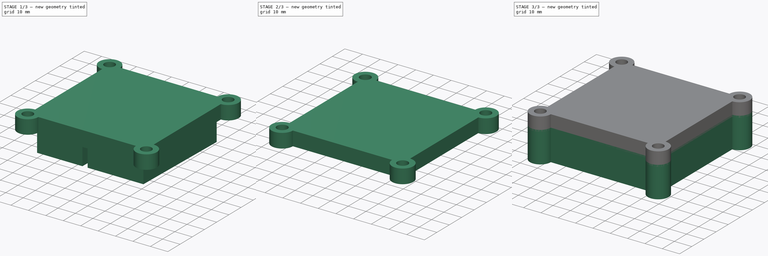
[diagram: build sequence overview — one tinted view per stage of 3, left to right]
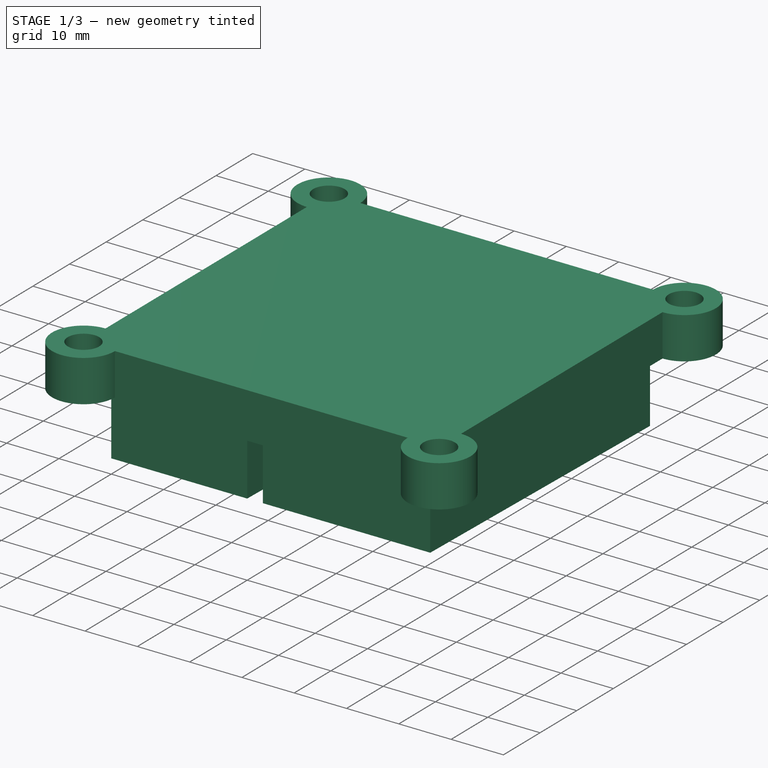
[diagram: stage 1 of 3 — iso view after this stage's code; geometry added in this stage tinted green]
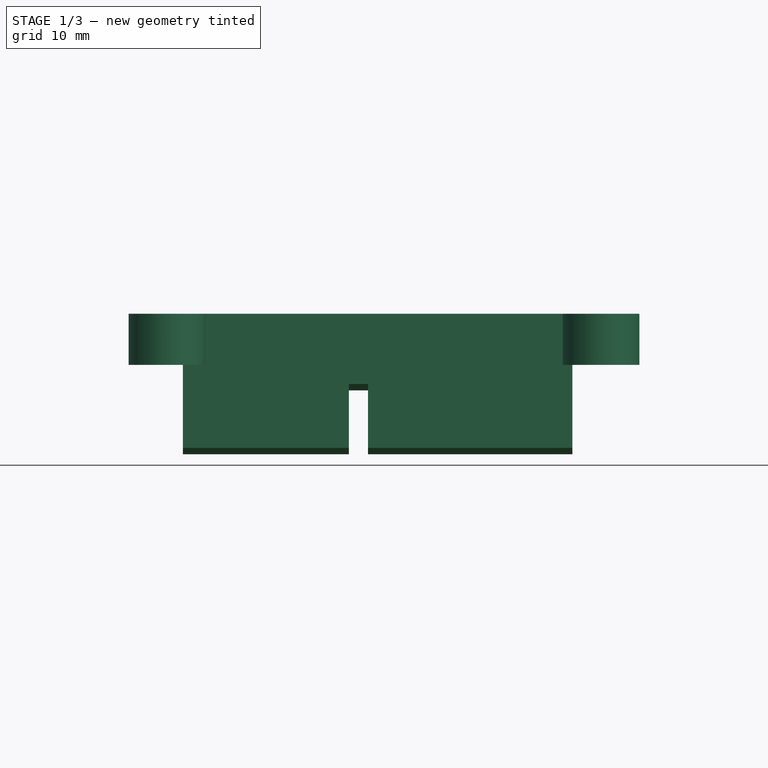
[diagram: stage 1 of 3 — front view after this stage's code; geometry added in this stage tinted green]
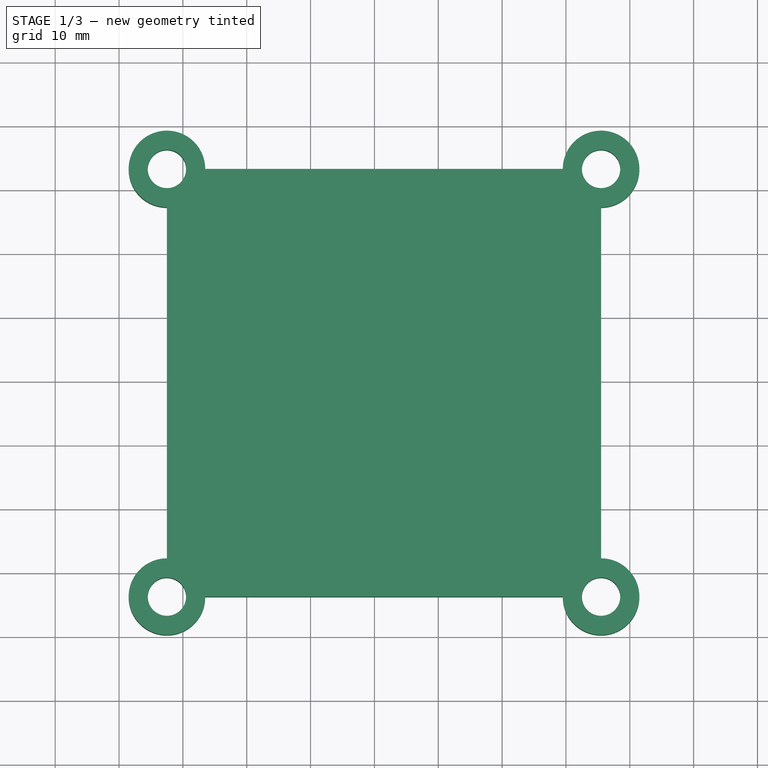
[diagram: stage 1 of 3 — top view after this stage's code; geometry added in this stage tinted green]
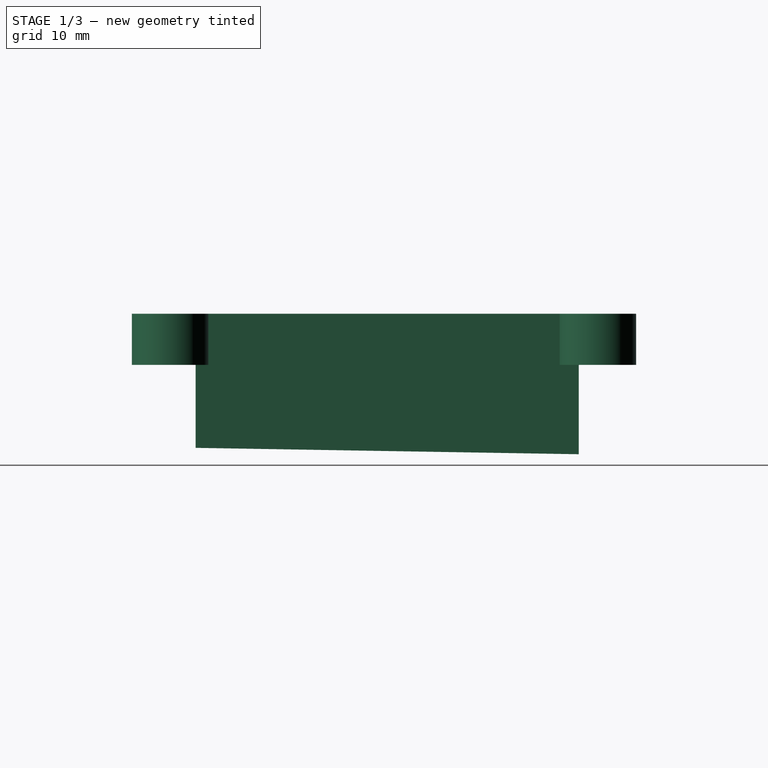
[diagram: stage 1 of 3 — right view after this stage's code; geometry added in this stage tinted green]
FCSTD DOCUMENT  (FreeCAD 0.16R6704 (Git))
Label: HalMultiSensorEnclosure
License: All rights reserved
LicenseURL: http://en.wikipedia.org/wiki/All_rights_reserved
objects: Part::Extrusion×3, Sketcher::SketchObject×2, Part::Cut×2
note: 7 computed .brp shape members not serialized (recipe doc carries the construction recipe); baked Part::Feature solids carry a one-line shape summary decoded from their .brp

FEATURE [Sketcher::SketchObject] Sketch  label="Enclosure"
  sketch-geometry (12):
    g0: Circle CenterX=-2.5 CenterY=-64 CenterZ=0 NormalX=0 NormalY=0 NormalZ=1 Radius=3
    g1: Circle CenterX=-2.5 CenterY=3 CenterZ=0 NormalX=0 NormalY=0 NormalZ=1 Radius=3
    g2: Circle CenterX=65.5 CenterY=-64 CenterZ=0 NormalX=0 NormalY=0 NormalZ=1 Radius=3
    g3: ArcOfCircle CenterX=65.5 CenterY=-64 CenterZ=0 NormalX=0 NormalY=0 NormalZ=1 Radius=6 StartAngle=3.14159 EndAngle=7.85398
    g4: ArcOfCircle CenterX=-2.5 CenterY=-64 CenterZ=0 NormalX=0 NormalY=0 NormalZ=1 Radius=6 StartAngle=1.5708 EndAngle=6.28319
    g5: ArcOfCircle CenterX=-2.5 CenterY=3 CenterZ=0 NormalX=0 NormalY=0 NormalZ=1 Radius=6 StartAngle=5.8686e-08 EndAngle=4.71238
    g6: ArcOfCircle CenterX=65.5 CenterY=3 CenterZ=0 NormalX=0 NormalY=0 NormalZ=1 Radius=6 StartAngle=4.71239 EndAngle=9.42478
    g7: Circle CenterX=65.5 CenterY=3 CenterZ=0 NormalX=0 NormalY=0 NormalZ=1 Radius=3
    g8: LineSegment StartX=3.5 StartY=-64 StartZ=0 EndX=59.5 EndY=-64 EndZ=0
    g9: LineSegment StartX=65.5 StartY=-58 StartZ=0 EndX=65.5 EndY=-3 EndZ=0
    g10: LineSegment StartX=59.5 StartY=3 StartZ=0 EndX=3.5 EndY=3 EndZ=0
    g11: LineSegment StartX=-2.50003 StartY=-3 StartZ=0 EndX=-2.5 EndY=-58 EndZ=0
  constraints (36):
    c: Radius(g1) = 3
    c: Radius(g5) = 6
    c: Equal(g5,g6)
    c: Equal(g6,g3)
    c: Equal(g3,g4)
    c: Equal(g1,g7)
    c: Equal(g7,g2)
    c: Equal(g2,g0)
    c: Coincident(g5,g10)
    c: Coincident(g5,g11)
    c: Coincident(g4,g11)
    c: Coincident(g4,g8)
    c: Coincident(g6,g10)
    c: Coincident(g6,g9)
    c: Coincident(g3,g9)
    c: Coincident(g3,g8)
    c: Coincident(g1,g5)
    c: Coincident(g6,g7)
    c: Coincident(g2,g3)
    c: Coincident(g0,g4)
    c: DistanceY(g5,g1) = 6
    c: DistanceX(g1,g5) = 6
    c: DistanceX(g6,g6) = 6
    c: DistanceY(g6,g6) = 6
    c: DistanceY(g2,g3) = 6
    c: DistanceX(g3,g2) = 6
    c: DistanceX(g0,g4) = 6
    c: DistanceY(g0,g4) = 6
    c: Equal(g10,g8)
    c: Equal(g11,g9)
    c: DistanceX(g10,g10) = 56
    c: DistanceY(g9,g9) = 55
    c: Horizontal(g10)
    c: Vertical(g9)
    c: DistanceX(g1,g-1) = 2.5
    c: DistanceY(g-1,g1) = 3
FEATURE [Sketcher::SketchObject] Sketch001  label="Compartment"
  Placement = pos=(0,0,0) rot=(1,0,0;1.5708rad)
  sketch-geometry (10):
    g0: LineSegment StartX=0 StartY=3 StartZ=0 EndX=26 EndY=3 EndZ=0
    g1: LineSegment StartX=26 StartY=22 StartZ=0 EndX=0 EndY=22 EndZ=0
    g2: LineSegment StartX=0 StartY=22 StartZ=0 EndX=0 EndY=3 EndZ=0
    g3: LineSegment StartX=61 StartY=3 StartZ=0 EndX=29 EndY=3 EndZ=0
    g4: LineSegment StartX=29 StartY=22 StartZ=0 EndX=61 EndY=22 EndZ=0
    g5: LineSegment StartX=61 StartY=22 StartZ=0 EndX=61 EndY=3 EndZ=0
    g6: LineSegment StartX=26 StartY=22 StartZ=0 EndX=29 EndY=22 EndZ=0
    g7: LineSegment StartX=26 StartY=3 StartZ=0 EndX=26 EndY=13 EndZ=0
    g8: LineSegment StartX=29 StartY=3 StartZ=0 EndX=29 EndY=13 EndZ=0
    g9: LineSegment StartX=29 StartY=13 StartZ=0 EndX=26 EndY=13 EndZ=0
  constraints (31):
    c: Coincident(g1,g2)
    c: Coincident(g2,g0)
    c: Horizontal(g0)
    c: Horizontal(g1)
    c: Vertical(g2)
    c: Coincident(g4,g5)
    c: Coincident(g5,g3)
    c: Horizontal(g3)
    c: Horizontal(g4)
    c: Vertical(g5)
    c: DistanceY(g5,g5) = 19
    c: Equal(g5,g2)
    c: DistanceX(g4,g4) = 32
    c: DistanceX(g1,g1) = 26
    c: DistanceX(g1,g4) = 3
    c: Coincident(g6,g1)
    c: Coincident(g6,g4)
    c: DistanceY(g4,g1) = 0
    c: Coincident(g7,g0)
    c: Vertical(g7)
    c: Coincident(g8,g3)
    c: Vertical(g8)
    c: Coincident(g9,g8)
    c: Coincident(g9,g7)
    c: Equal(g9,g6)
    c: Equal(g7,g8)
    c: DistanceY(g8,g8) = 10
    c: Equal(g4,g3)
    c: Equal(g1,g0)
    c: DistanceY(g-1,g0) = 3
    c: DistanceX(g-1,g0) = 0
FEATURE [Part::Extrusion] Extrude  label="Compartment001"
  Base = -> Sketch001
  Dir = (0,-60,1)
  Solid = true
FEATURE [Part::Extrusion] Extrude002  label="Top"
  Base = -> Sketch
  Dir = (0,0,-8)
  Placement = pos=(0,0,25) rot=(0,0,1;0rad)
  Solid = true
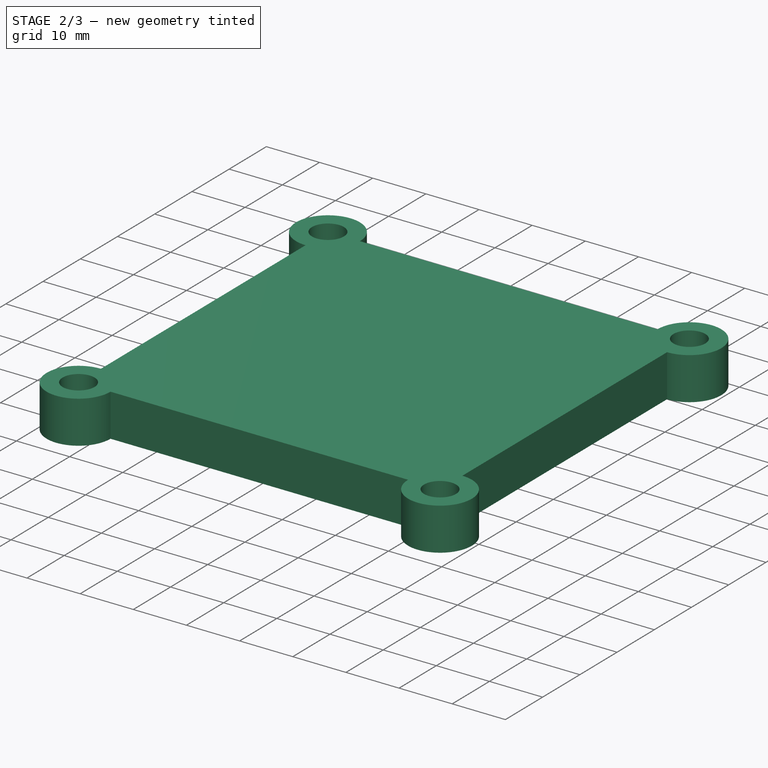
[diagram: stage 2 of 3 — iso view after this stage's code; geometry added in this stage tinted green]
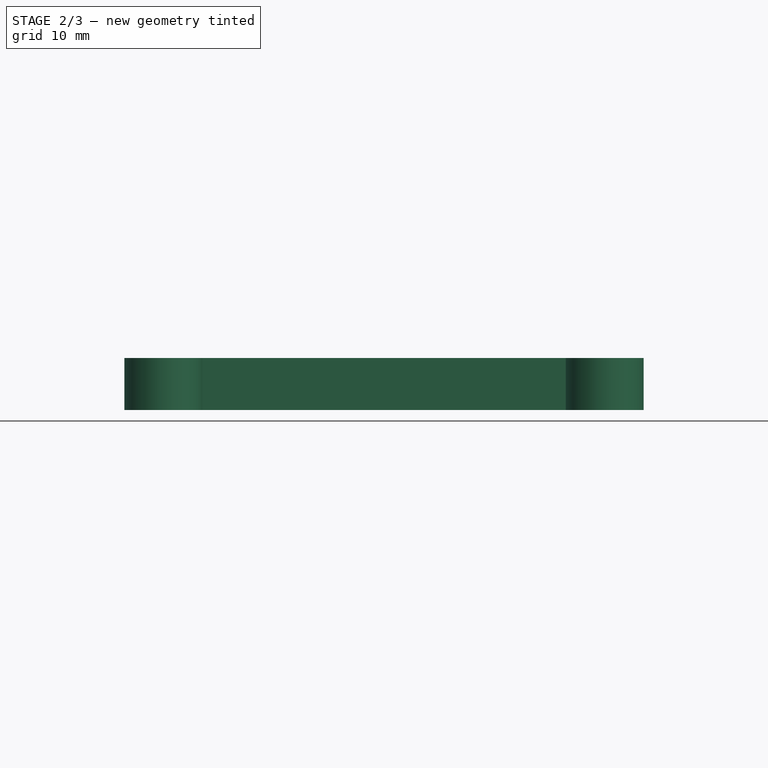
[diagram: stage 2 of 3 — front view after this stage's code; geometry added in this stage tinted green]
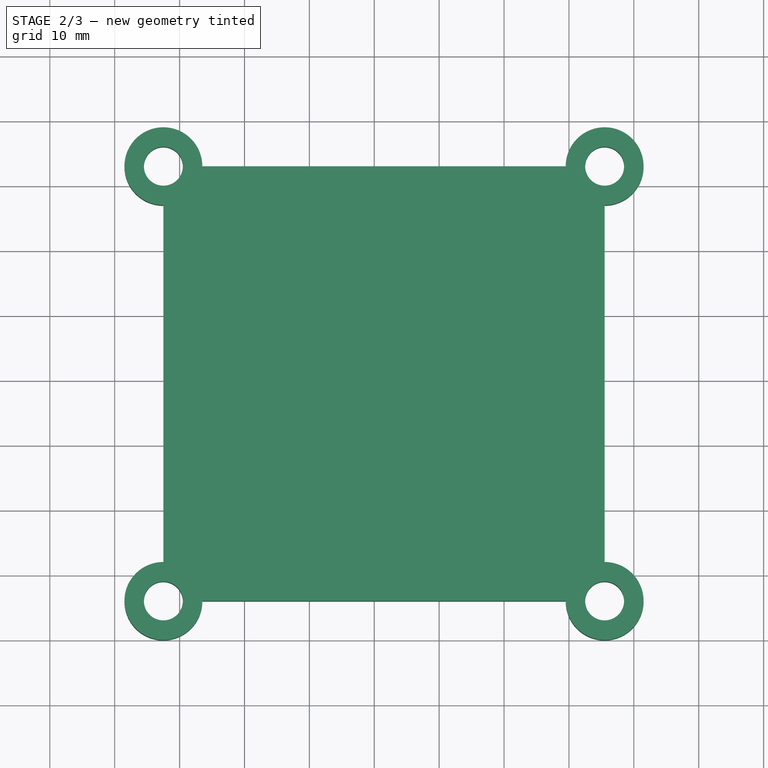
[diagram: stage 2 of 3 — top view after this stage's code; geometry added in this stage tinted green]
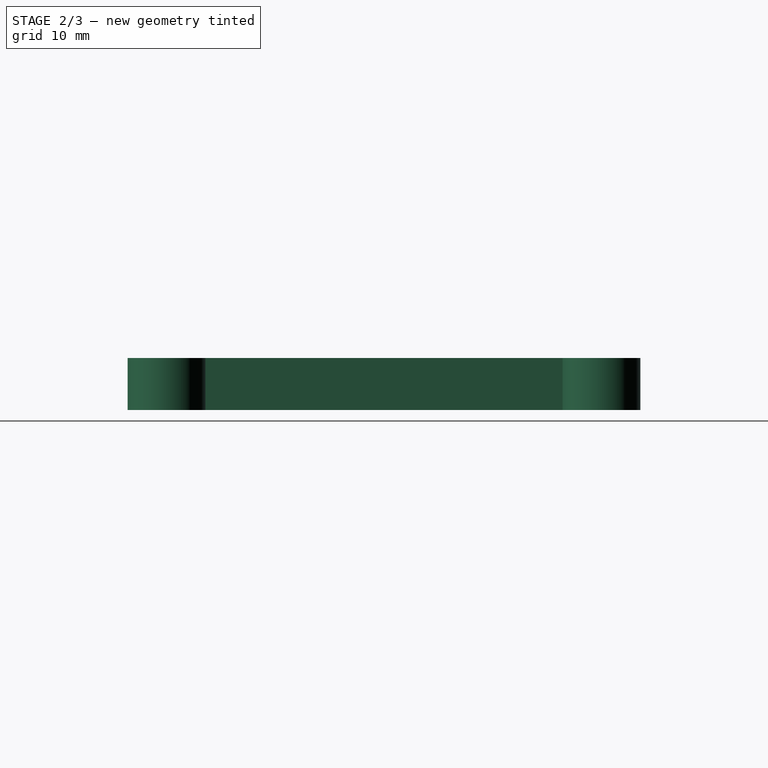
[diagram: stage 2 of 3 — right view after this stage's code; geometry added in this stage tinted green]
FEATURE [Part::Cut] Cut001  label="Top001"
  Base = -> Extrude002
  Tool = -> Extrude
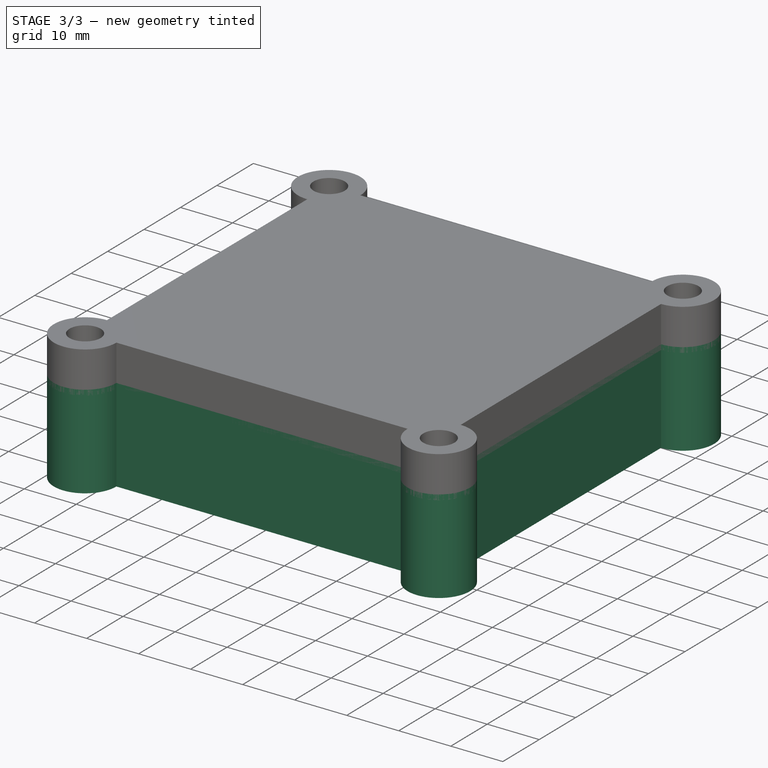
[diagram: stage 3 of 3 — iso view after this stage's code; geometry added in this stage tinted green]
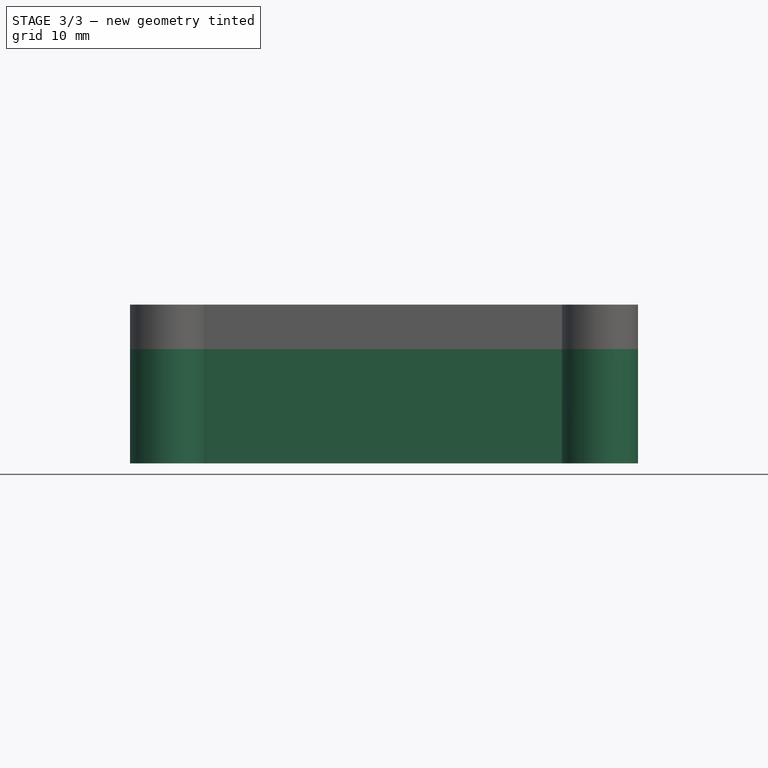
[diagram: stage 3 of 3 — front view after this stage's code; geometry added in this stage tinted green]
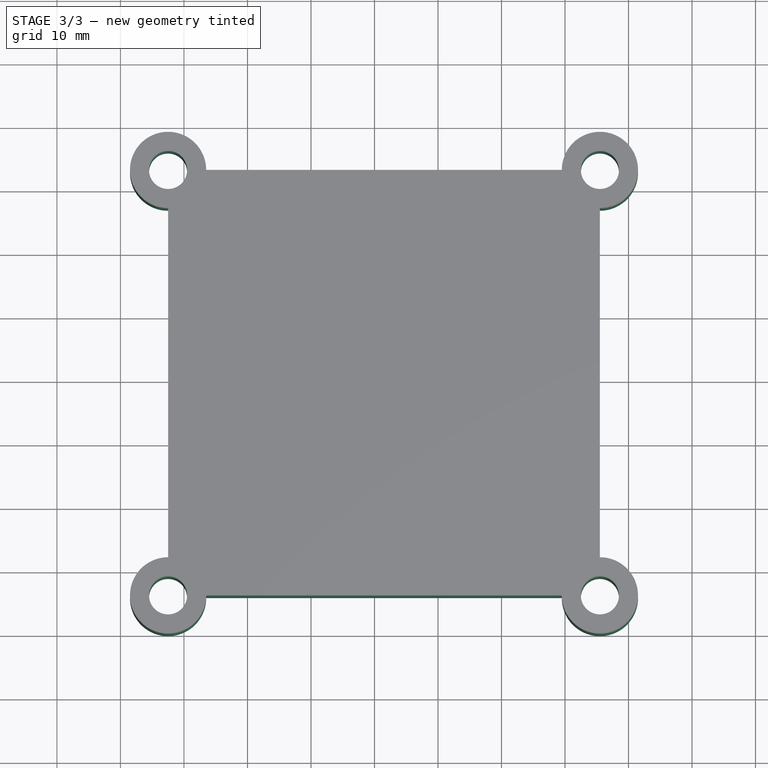
[diagram: stage 3 of 3 — top view after this stage's code; geometry added in this stage tinted green]
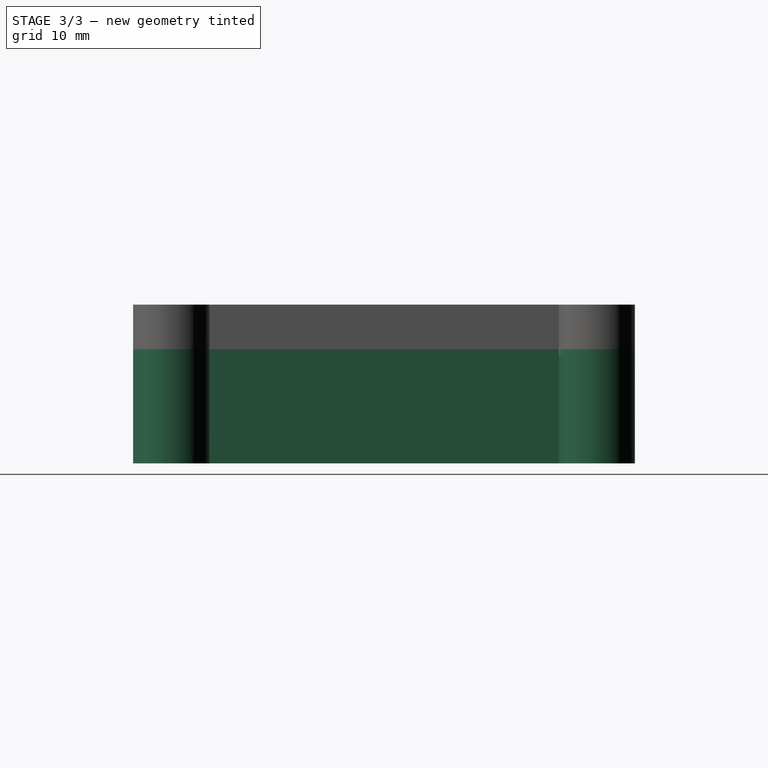
[diagram: stage 3 of 3 — right view after this stage's code; geometry added in this stage tinted green]
FEATURE [Part::Extrusion] Extrude001  label="Bottom"
  Base = -> Sketch
  Dir = (0,0,18)
  Solid = true
FEATURE [Part::Cut] Cut  label="Bottom001"
  Base = -> Extrude001
  Tool = -> Extrude
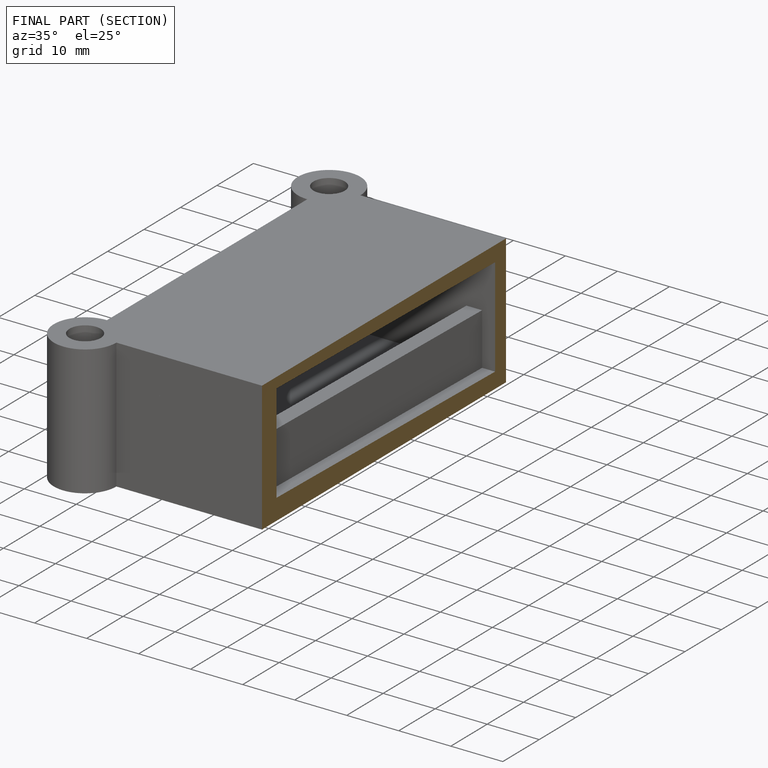
[diagram: finished part — half-section view (interior)]
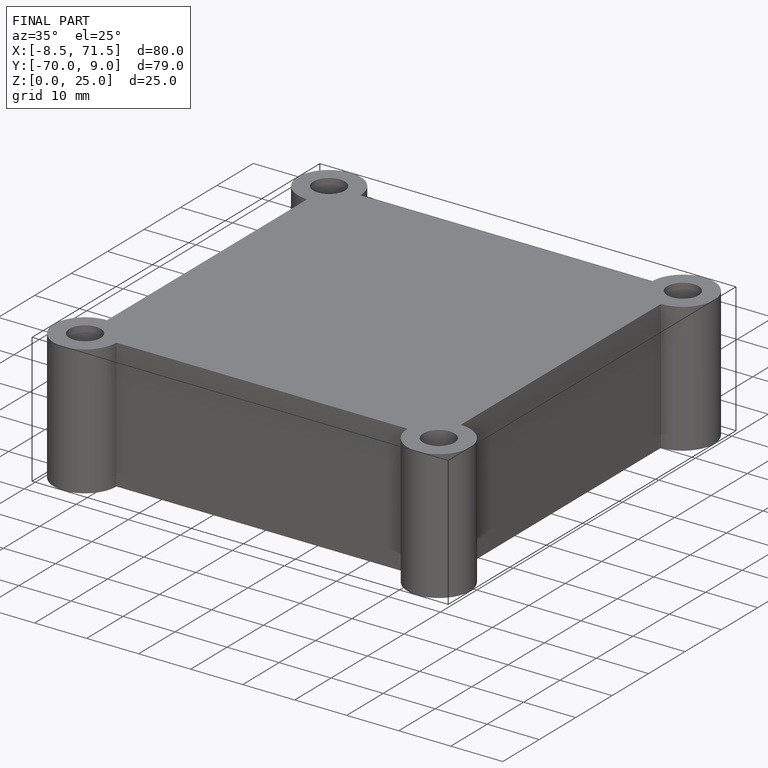
[diagram: finished part — iso view with bounding-box wireframe]
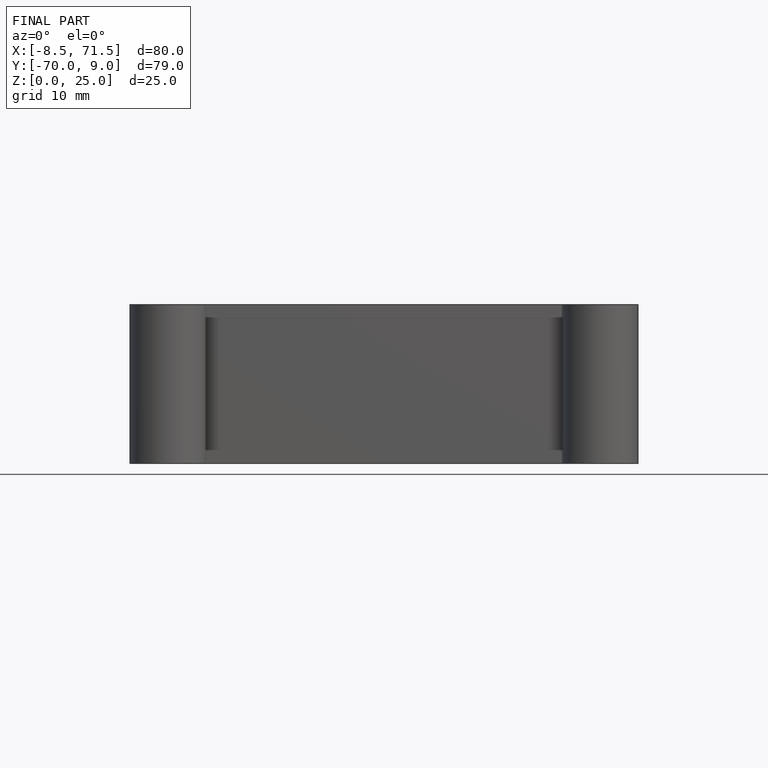
[diagram: finished part — front view with bounding-box wireframe]
